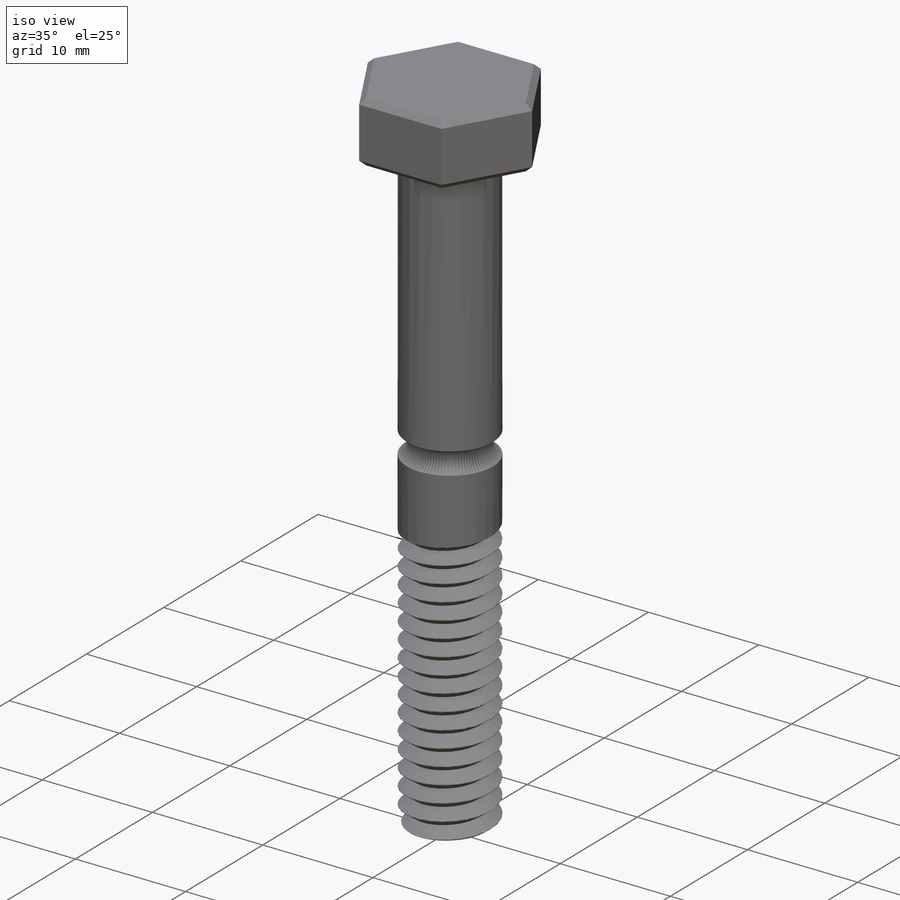
[diagram: iso view]
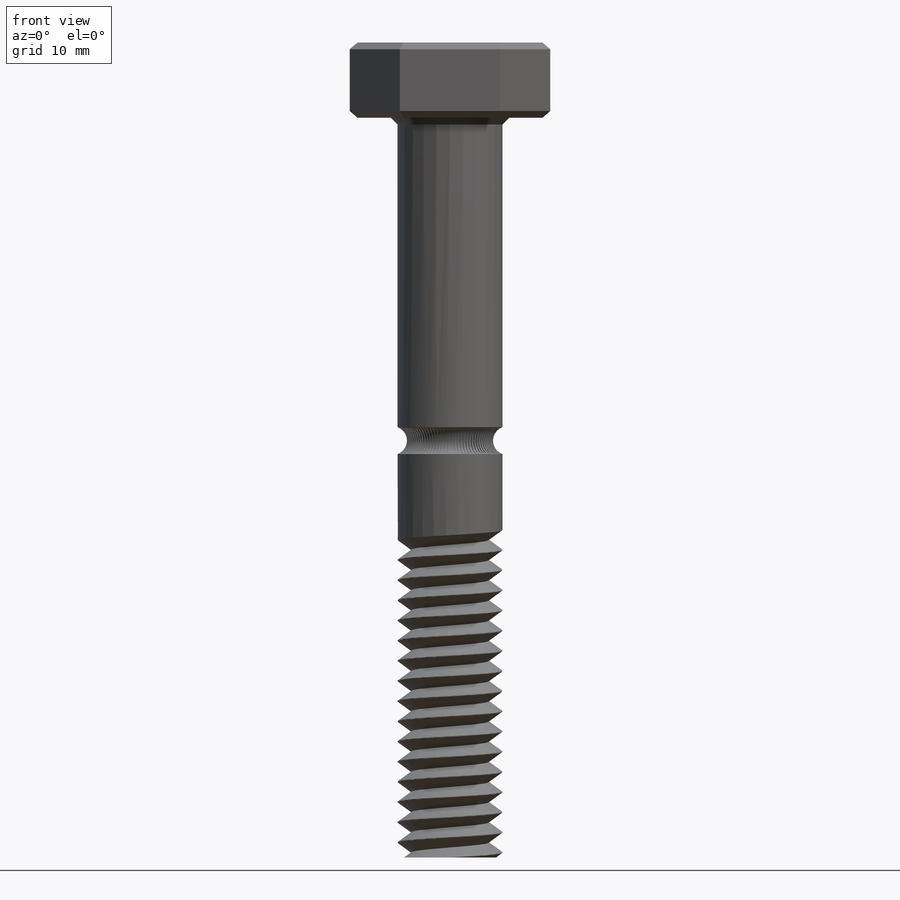
[diagram: front view]
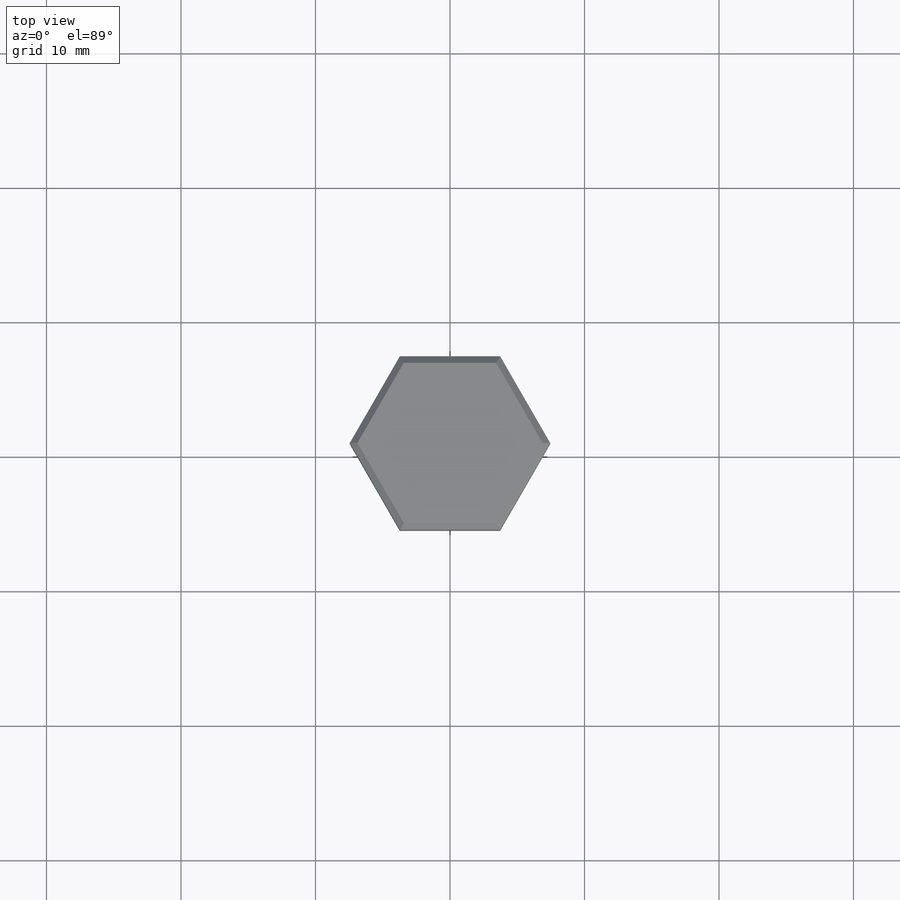
[diagram: top view]
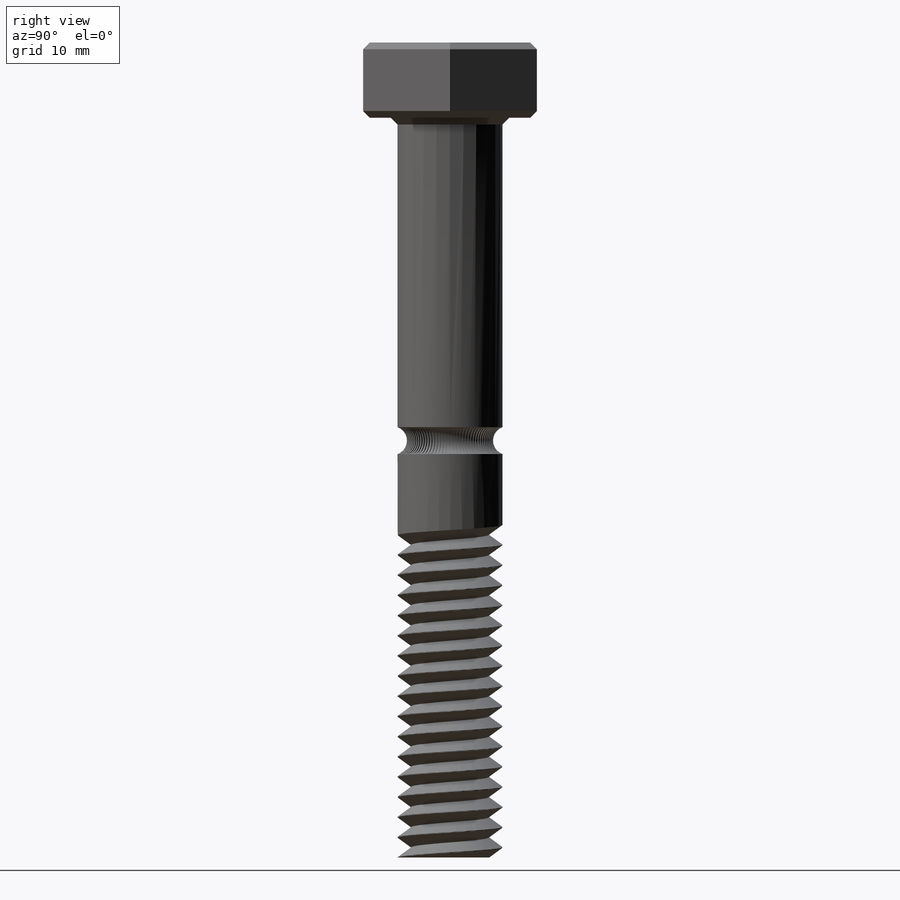
[diagram: right view]
SOLIDWORKS PART (.sldprt)
format: sldprt  version: not decoded by parser v0  size: 695,296 bytes
history: native  units: mm
features: sketch x7, extrude x2, cut_revolve x2, material x1, helix x1, sweep x1, cut_extrude x1, pattern_circular x1, chamfer x1 (+13 scaffold rows collapsed)
feature tree (30):
  scaffold x13  (default folders/planes/origin — collapsed)
  material  "Material <not specified>"
  sketch  "Sketch1"  dims[D1=7.8mm]
  extrude  "Boss-Extrude1"  Depth=55mm
  sketch  "Sketch2"  dims[D1=12.91mm]
  extrude  "Boss-Extrude2"  Depth=5.6mm
  sketch  "Sketch3"  dims[D1=1.45mm D2=1.0mm D3=25.0mm D4=0.1mm]
  sketch  "Sketch4"
  helix  "Helix/Spiral1"  Pitch=24mm
  sweep  "Cut-Sweep3"
  sketch  "Sketch6"  dims[D1=0.0mm]
  cut_extrude  "Cut-Extrude1"  Depth=5.6mm
  sketch  "Sketch7"  dims[D1=30.0mm D2=2.0mm D3=6.4mm]
  cut_revolve  "Cut-Revolve1"  Angle=360deg
  sketch  "Sketch8"  dims[D1=0.1mm]
  cut_revolve  "Cut-Revolve2"  Angle=0.75deg
  pattern_circular  "CirPattern1"  Count=89 Angle=360deg
  chamfer  "Chamfer1"  Distance=0.5mm Angle=45deg
decode coverage: 14 of 16 modeling features carry decoded parameters
note: suppression state not decoded; provenance and decode notes live in map.json
